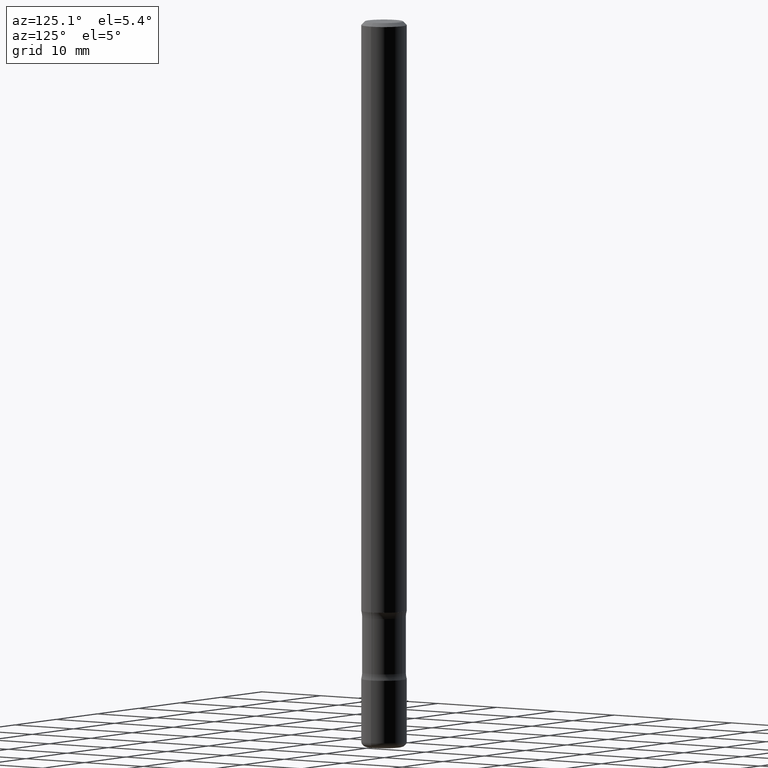
[diagram: clean part render]
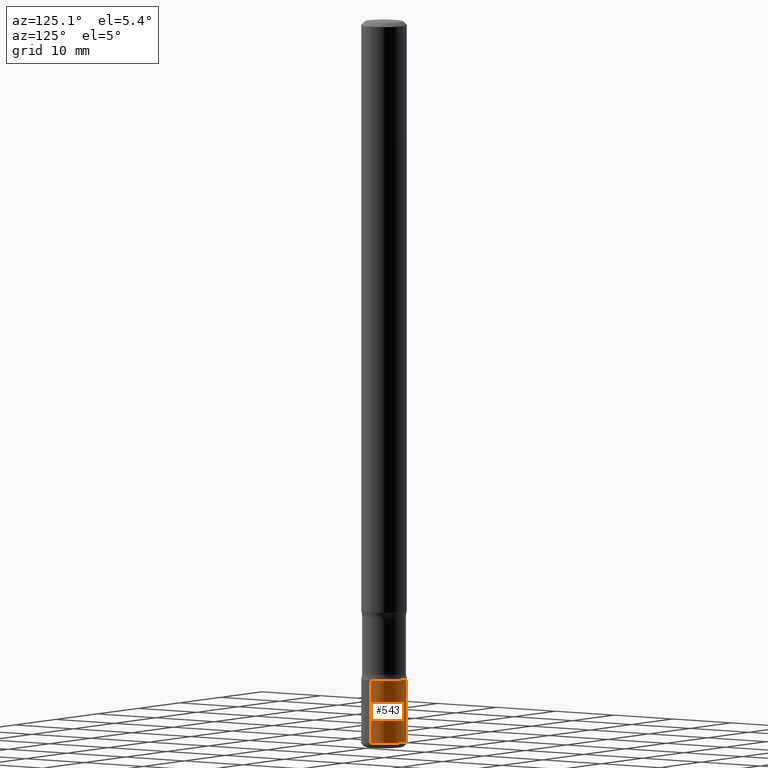
[diagram: same view with one face highlighted and labeled with its STEP entity id]
A machine part, auxiliary view. The second image highlights one B-rep face of the part: STEP entity #543.
In plain terms, the highlighted cylindrical surface (edge-blend (fillet) strip) has radius 3.175 mm, axis along (-0, 0, 1).
Its self-contained STEP definition (entity closure, byte-faithful):
#44 = CARTESIAN_POINT ( 'NONE',  ( 0.1250000000000000000, -8.728703347107833388E-16, 6.095220969744919741E-30 ) ) ;
#70 = VERTEX_POINT ( 'NONE', #597 ) ;
#75 = CIRCLE ( 'NONE', #538, 0.1250000000000000000 ) ;
#188 = CARTESIAN_POINT ( 'NONE',  ( -0.1250000000000000000, -1.297300249550716373E-14, -3.970000000000000195 ) ) ;
#208 = VERTEX_POINT ( 'NONE', #741 ) ;
#218 = AXIS2_PLACEMENT_3D ( 'NONE', #435, #297, #353 ) ;
#249 = ORIENTED_EDGE ( 'NONE', *, *, #623, .F. ) ;
#252 = LINE ( 'NONE', #627, #799 ) ;
#297 = DIRECTION ( 'NONE',  ( -2.445468806185136597E-29, 3.491481338843145583E-15, 1.000000000000000000 ) ) ;
#306 = ORIENTED_EDGE ( 'NONE', *, *, #332, .T. ) ;
#313 = CYLINDRICAL_SURFACE ( 'NONE', #218, 0.1250000000000000000 ) ;
#322 = EDGE_CURVE ( 'NONE', #70, #556, #672, .T. ) ;
#332 = EDGE_CURVE ( 'NONE', #556, #208, #252, .T. ) ;
#353 = DIRECTION ( 'NONE',  ( 1.000000000000000000, -6.982962677686266711E-15, 4.876176775795935793E-29 ) ) ;
#365 = VERTEX_POINT ( 'NONE', #481 ) ;
#424 = DIRECTION ( 'NONE',  ( -2.445468806185136877E-29, 3.491481338843145188E-15, 1.000000000000000000 ) ) ;
#428 = CARTESIAN_POINT ( 'NONE',  ( 8.864824422421120163E-29, -1.265661985330640259E-14, -3.624999999999999556 ) ) ;
#429 = AXIS2_PLACEMENT_3D ( 'NONE', #434, #487, #557 ) ;
#434 = CARTESIAN_POINT ( 'NONE',  ( 9.708511160554992872E-29, -1.386118091520728738E-14, -3.970000000000000195 ) ) ;
#435 = CARTESIAN_POINT ( 'NONE',  ( 0.000000000000000000, 0.000000000000000000, 0.000000000000000000 ) ) ;
#438 = ORIENTED_EDGE ( 'NONE', *, *, #598, .F. ) ;
#481 = CARTESIAN_POINT ( 'NONE',  ( 0.1250000000000000000, -1.352949018801718435E-14, -3.624999999999999556 ) ) ;
#487 = DIRECTION ( 'NONE',  ( -2.445468806185136597E-29, 3.491481338843145583E-15, 1.000000000000000000 ) ) ;
#515 = DIRECTION ( 'NONE',  ( -2.445468806185136597E-29, 3.491481338843145583E-15, 1.000000000000000000 ) ) ;
#538 = AXIS2_PLACEMENT_3D ( 'NONE', #428, #515, #754 ) ;
#543 = ADVANCED_FACE ( 'NONE', ( #569 ), #313, .T. ) ;
#556 = VERTEX_POINT ( 'NONE', #188 ) ;
#557 = DIRECTION ( 'NONE',  ( 1.000000000000000000, -6.982962677686261189E-15, 0.000000000000000000 ) ) ;
#569 = FACE_OUTER_BOUND ( 'NONE', #639, .T. ) ;
#597 = CARTESIAN_POINT ( 'NONE',  ( 0.1250000000000000000, -1.473405124991807072E-14, -3.970000000000000195 ) ) ;
#598 = EDGE_CURVE ( 'NONE', #365, #208, #75, .T. ) ;
#619 = ORIENTED_EDGE ( 'NONE', *, *, #322, .T. ) ;
#623 = EDGE_CURVE ( 'NONE', #70, #365, #665, .T. ) ;
#627 = CARTESIAN_POINT ( 'NONE',  ( -0.1250000000000000000, 8.881784197001252323E-16, -6.148668862818632227E-30 ) ) ;
#639 = EDGE_LOOP ( 'NONE', ( #619, #306, #438, #249 ) ) ;
#665 = LINE ( 'NONE', #44, #675 ) ;
#672 = CIRCLE ( 'NONE', #429, 0.1250000000000000278 ) ;
#675 = VECTOR ( 'NONE', #424, 39.37007874015748143 ) ;
#741 = CARTESIAN_POINT ( 'NONE',  ( -0.1250000000000000000, -1.237072196455672054E-14, -3.624999999999999556 ) ) ;
#754 = DIRECTION ( 'NONE',  ( 1.000000000000000000, -6.982962677686262766E-15, 0.000000000000000000 ) ) ;
#789 = DIRECTION ( 'NONE',  ( -2.445468806185136877E-29, 3.491481338843145188E-15, 1.000000000000000000 ) ) ;
#799 = VECTOR ( 'NONE', #789, 39.37007874015748143 ) ;